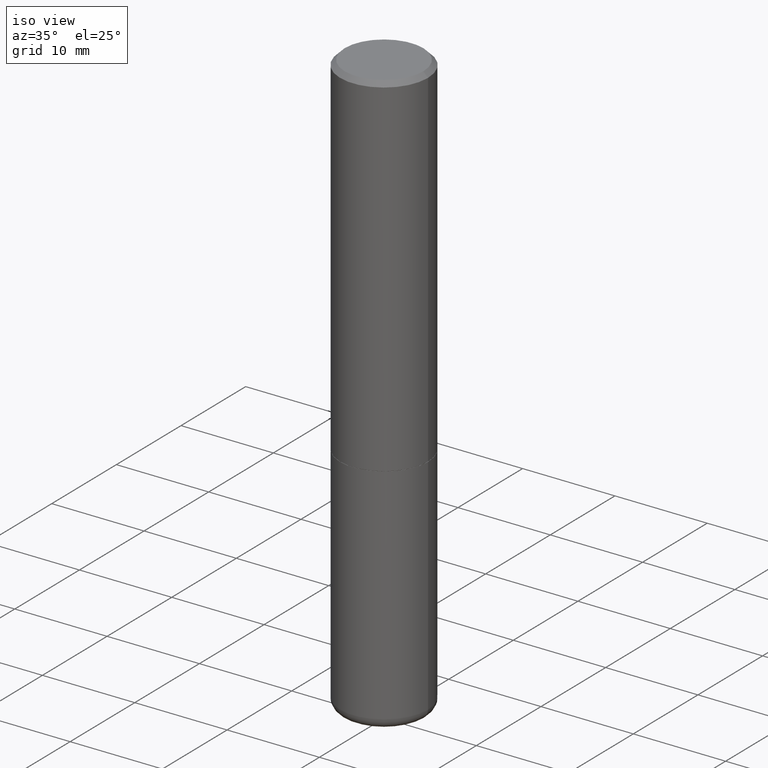
[diagram: clean part render]
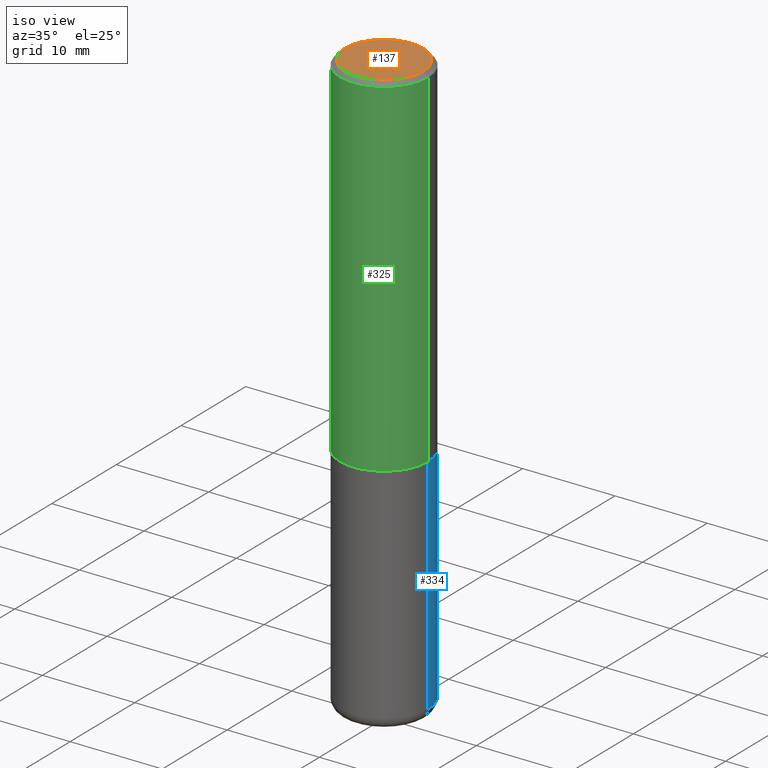
[diagram: same view with three faces highlighted in distinct colors, each labeled with its STEP entity id]
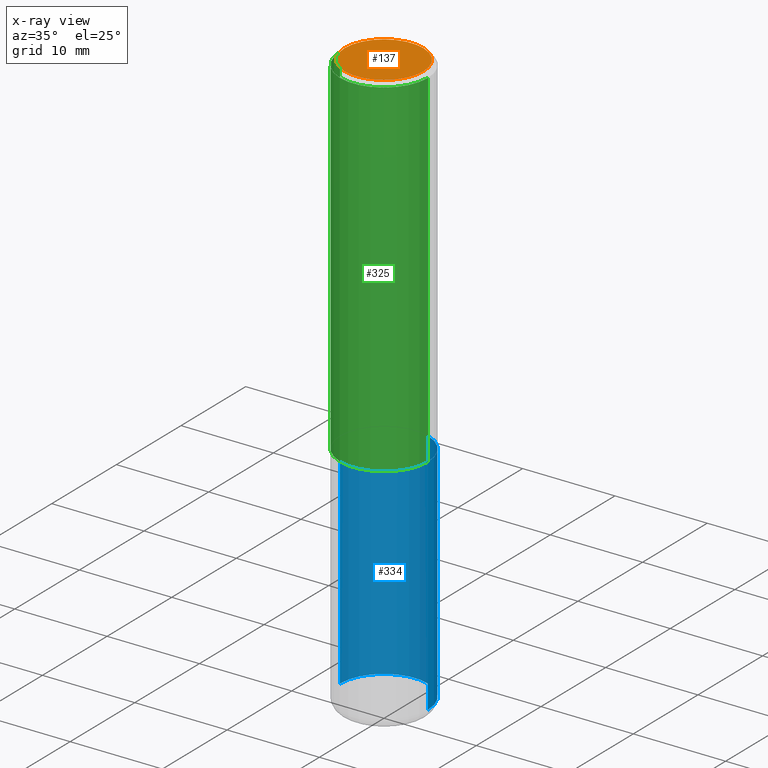
[diagram: x-ray of the same camera — body ghosted, the three highlighted faces saturated]
A machine part, iso view with three faces highlighted in distinct colors.
The next image is the same camera in x-ray (body ghosted, the three faces saturated) — at least one of them is partly hidden behind the body in this view.
Their STEP definitions:

[orange] entity #137 — the highlighted planar face has unit normal (0, -0, -1).
#8 = EDGE_CURVE ( 'NONE', #34, #312, #78, .T. ) ;
#34 = VERTEX_POINT ( 'NONE', #149 ) ;
#40 = EDGE_LOOP ( 'NONE', ( #301, #304 ) ) ;
#78 = CIRCLE ( 'NONE', #324, 0.1674999999999998157 ) ;
#80 = AXIS2_PLACEMENT_3D ( 'NONE', #316, #352, #281 ) ;
#110 = AXIS2_PLACEMENT_3D ( 'NONE', #442, #409, #201 ) ;
#137 = ADVANCED_FACE ( 'NONE', ( #354 ), #416, .F. ) ;
#149 = CARTESIAN_POINT ( 'NONE',  ( -0.1674999999999998157, 1.204561061900879272E-15, -8.301862719484101980E-30 ) ) ;
#201 = DIRECTION ( 'NONE',  ( 1.000000000000000000, -6.982962677686266711E-15, 4.876176775795936914E-29 ) ) ;
#233 = EDGE_CURVE ( 'NONE', #312, #34, #400, .T. ) ;
#255 = CARTESIAN_POINT ( 'NONE',  ( 0.1674999999999998157, -1.252653207992877105E-15, 8.469775550109232378E-30 ) ) ;
#268 = DIRECTION ( 'NONE',  ( -2.445468806185136597E-29, 3.491481338843145583E-15, 1.000000000000000000 ) ) ;
#281 = DIRECTION ( 'NONE',  ( -1.000000000000000000, 6.982962677686265922E-15, -4.876176775795935793E-29 ) ) ;
#301 = ORIENTED_EDGE ( 'NONE', *, *, #8, .T. ) ;
#304 = ORIENTED_EDGE ( 'NONE', *, *, #233, .T. ) ;
#312 = VERTEX_POINT ( 'NONE', #255 ) ;
#316 = CARTESIAN_POINT ( 'NONE',  ( 1.169646248512448412E-15, 0.1674999999999998157, -5.848231242562262767E-16 ) ) ;
#324 = AXIS2_PLACEMENT_3D ( 'NONE', #439, #268, #341 ) ;
#341 = DIRECTION ( 'NONE',  ( 1.000000000000000000, -6.982962677686266711E-15, 4.876176775795936914E-29 ) ) ;
#352 = DIRECTION ( 'NONE',  ( 2.438088387897960049E-29, -3.491481338843145188E-15, -1.000000000000000000 ) ) ;
#354 = FACE_OUTER_BOUND ( 'NONE', #40, .T. ) ;
#400 = CIRCLE ( 'NONE', #110, 0.1674999999999998157 ) ;
#409 = DIRECTION ( 'NONE',  ( -2.445468806185136597E-29, 3.491481338843145583E-15, 1.000000000000000000 ) ) ;
#416 = PLANE ( 'NONE',  #80 ) ;
#439 = CARTESIAN_POINT ( 'NONE',  ( 0.000000000000000000, 0.000000000000000000, 0.000000000000000000 ) ) ;
#442 = CARTESIAN_POINT ( 'NONE',  ( 0.000000000000000000, 0.000000000000000000, 0.000000000000000000 ) ) ;

[blue] entity #334 — the highlighted cylindrical surface (partial cylindrical patch) has radius 4.7625 mm, axis along (-0, 0, 1).
#5 = CARTESIAN_POINT ( 'NONE',  ( -0.1875000000000000278, -5.572244379473308339E-15, -1.500000000000000222 ) ) ;
#12 = CARTESIAN_POINT ( 'NONE',  ( -0.1874999999999998890, 1.332267629550187060E-15, -9.223003294227942385E-30 ) ) ;
#22 = CARTESIAN_POINT ( 'NONE',  ( -0.1874999999999997502, -5.572244379473309128E-15, -2.455061670936044660 ) ) ;
#23 = LINE ( 'NONE', #12, #230 ) ;
#43 = VERTEX_POINT ( 'NONE', #5 ) ;
#56 = AXIS2_PLACEMENT_3D ( 'NONE', #267, #83, #408 ) ;
#63 = DIRECTION ( 'NONE',  ( 1.000000000000000000, -6.982962677686266711E-15, 0.000000000000000000 ) ) ;
#71 = FACE_OUTER_BOUND ( 'NONE', #210, .T. ) ;
#72 = VERTEX_POINT ( 'NONE', #328 ) ;
#83 = DIRECTION ( 'NONE',  ( -2.445468806185136597E-29, 3.491481338843145583E-15, 1.000000000000000000 ) ) ;
#97 = DIRECTION ( 'NONE',  ( -2.445468806185136597E-29, 3.491481338843145583E-15, 1.000000000000000000 ) ) ;
#100 = EDGE_CURVE ( 'NONE', #243, #43, #23, .T. ) ;
#131 = CARTESIAN_POINT ( 'NONE',  ( 3.668203209277704895E-29, -5.237222008264718177E-15, -1.500000000000000222 ) ) ;
#150 = ORIENTED_EDGE ( 'NONE', *, *, #272, .T. ) ;
#153 = ORIENTED_EDGE ( 'NONE', *, *, #100, .T. ) ;
#179 = ORIENTED_EDGE ( 'NONE', *, *, #256, .F. ) ;
#180 = VERTEX_POINT ( 'NONE', #361 ) ;
#196 = CARTESIAN_POINT ( 'NONE',  ( 6.003776733534855624E-29, -8.571802009782271832E-15, -2.455061670936044660 ) ) ;
#203 = AXIS2_PLACEMENT_3D ( 'NONE', #196, #97, #430 ) ;
#210 = EDGE_LOOP ( 'NONE', ( #150, #153, #179, #310 ) ) ;
#230 = VECTOR ( 'NONE', #282, 39.37007874015748143 ) ;
#239 = EDGE_CURVE ( 'NONE', #72, #180, #297, .T. ) ;
#243 = VERTEX_POINT ( 'NONE', #22 ) ;
#256 = EDGE_CURVE ( 'NONE', #180, #43, #379, .T. ) ;
#267 = CARTESIAN_POINT ( 'NONE',  ( 0.000000000000000000, 0.000000000000000000, 0.000000000000000000 ) ) ;
#272 = EDGE_CURVE ( 'NONE', #72, #243, #364, .T. ) ;
#282 = DIRECTION ( 'NONE',  ( -2.445468806185136877E-29, 3.491481338843145188E-15, 1.000000000000000000 ) ) ;
#297 = LINE ( 'NONE', #401, #395 ) ;
#310 = ORIENTED_EDGE ( 'NONE', *, *, #239, .F. ) ;
#328 = CARTESIAN_POINT ( 'NONE',  ( 0.1874999999999997502, -9.881107511848445263E-15, -2.455061670936044660 ) ) ;
#332 = DIRECTION ( 'NONE',  ( -2.445468806185136877E-29, 3.491481338843145188E-15, 1.000000000000000000 ) ) ;
#334 = ADVANCED_FACE ( 'NONE', ( #71 ), #438, .T. ) ;
#361 = CARTESIAN_POINT ( 'NONE',  ( 0.1875000000000000278, -6.546527510330893974E-15, -1.500000000000000222 ) ) ;
#364 = CIRCLE ( 'NONE', #203, 0.1874999999999997502 ) ;
#379 = CIRCLE ( 'NONE', #441, 0.1875000000000000278 ) ;
#393 = DIRECTION ( 'NONE',  ( -2.445468806185136597E-29, 3.491481338843145583E-15, 1.000000000000000000 ) ) ;
#395 = VECTOR ( 'NONE', #332, 39.37007874015748143 ) ;
#401 = CARTESIAN_POINT ( 'NONE',  ( 0.1874999999999998890, -1.309305502066174022E-15, 9.142831454617374006E-30 ) ) ;
#408 = DIRECTION ( 'NONE',  ( 1.000000000000000000, -6.982962677686265922E-15, 4.876176775795935793E-29 ) ) ;
#430 = DIRECTION ( 'NONE',  ( 1.000000000000000000, -6.982962677686266711E-15, 0.000000000000000000 ) ) ;
#438 = CYLINDRICAL_SURFACE ( 'NONE', #56, 0.1874999999999998890 ) ;
#441 = AXIS2_PLACEMENT_3D ( 'NONE', #131, #393, #63 ) ;

[green] entity #325 — the highlighted cylindrical surface (partial cylindrical patch) has radius 4.7625 mm, axis along (-0, 0, 1).
#25 = LINE ( 'NONE', #426, #254 ) ;
#29 = CARTESIAN_POINT ( 'NONE',  ( -0.1874999999999999722, -1.319512447301180399E-15, -1.499000000000000110 ) ) ;
#36 = VERTEX_POINT ( 'NONE', #344 ) ;
#41 = VERTEX_POINT ( 'NONE', #175 ) ;
#46 = DIRECTION ( 'NONE',  ( -2.445468806185136597E-29, 3.491481338843145583E-15, 1.000000000000000000 ) ) ;
#99 = DIRECTION ( 'NONE',  ( -2.445468806185136597E-29, 3.491481338843145583E-15, 1.000000000000000000 ) ) ;
#101 = CYLINDRICAL_SURFACE ( 'NONE', #220, 0.1874999999999999167 ) ;
#105 = CARTESIAN_POINT ( 'NONE',  ( -0.1874999999999999167, 1.332267629550187257E-15, -9.223003294227943787E-30 ) ) ;
#107 = AXIS2_PLACEMENT_3D ( 'NONE', #348, #46, #185 ) ;
#121 = ORIENTED_EDGE ( 'NONE', *, *, #169, .F. ) ;
#141 = DIRECTION ( 'NONE',  ( -2.445468806185136597E-29, 3.491481338843145583E-15, 1.000000000000000000 ) ) ;
#142 = EDGE_LOOP ( 'NONE', ( #121, #381, #278, #374 ) ) ;
#146 = VERTEX_POINT ( 'NONE', #245 ) ;
#169 = EDGE_CURVE ( 'NONE', #440, #41, #200, .T. ) ;
#172 = DIRECTION ( 'NONE',  ( 1.000000000000000000, -6.982962677686265922E-15, 4.876176775795935793E-29 ) ) ;
#173 = AXIS2_PLACEMENT_3D ( 'NONE', #228, #99, #290 ) ;
#175 = CARTESIAN_POINT ( 'NONE',  ( -0.1874999999999998057, 1.239475875289310527E-15, -0.02000000000000003164 ) ) ;
#185 = DIRECTION ( 'NONE',  ( 1.000000000000000000, -6.982962677686266711E-15, 0.000000000000000000 ) ) ;
#200 = LINE ( 'NONE', #105, #298 ) ;
#220 = AXIS2_PLACEMENT_3D ( 'NONE', #363, #141, #172 ) ;
#228 = CARTESIAN_POINT ( 'NONE',  ( 3.665757740471519853E-29, -5.233730526925875958E-15, -1.499000000000000110 ) ) ;
#231 = DIRECTION ( 'NONE',  ( -2.445468806185136877E-29, 3.491481338843145188E-15, 1.000000000000000000 ) ) ;
#245 = CARTESIAN_POINT ( 'NONE',  ( 0.1875000000000000278, -6.543036028992050967E-15, -1.499000000000000110 ) ) ;
#249 = CIRCLE ( 'NONE', #173, 0.1875000000000000278 ) ;
#254 = VECTOR ( 'NONE', #360, 39.37007874015748143 ) ;
#278 = ORIENTED_EDGE ( 'NONE', *, *, #296, .T. ) ;
#280 = EDGE_CURVE ( 'NONE', #440, #146, #249, .T. ) ;
#286 = CIRCLE ( 'NONE', #107, 0.1874999999999998057 ) ;
#290 = DIRECTION ( 'NONE',  ( 1.000000000000000000, -6.982962677686266711E-15, 0.000000000000000000 ) ) ;
#296 = EDGE_CURVE ( 'NONE', #146, #36, #25, .T. ) ;
#298 = VECTOR ( 'NONE', #231, 39.37007874015748143 ) ;
#325 = ADVANCED_FACE ( 'NONE', ( #398 ), #101, .T. ) ;
#344 = CARTESIAN_POINT ( 'NONE',  ( 0.1874999999999998057, -1.356173001359023888E-15, -0.02000000000000003164 ) ) ;
#348 = CARTESIAN_POINT ( 'NONE',  ( 4.890937612370280165E-31, -6.982962677686301470E-17, -0.02000000000000003164 ) ) ;
#360 = DIRECTION ( 'NONE',  ( -2.445468806185136877E-29, 3.491481338843145188E-15, 1.000000000000000000 ) ) ;
#363 = CARTESIAN_POINT ( 'NONE',  ( 0.000000000000000000, 0.000000000000000000, 0.000000000000000000 ) ) ;
#374 = ORIENTED_EDGE ( 'NONE', *, *, #413, .F. ) ;
#381 = ORIENTED_EDGE ( 'NONE', *, *, #280, .T. ) ;
#398 = FACE_OUTER_BOUND ( 'NONE', #142, .T. ) ;
#413 = EDGE_CURVE ( 'NONE', #41, #36, #286, .T. ) ;
#426 = CARTESIAN_POINT ( 'NONE',  ( 0.1874999999999999167, -1.309305502066174219E-15, 9.142831454617375408E-30 ) ) ;
#440 = VERTEX_POINT ( 'NONE', #29 ) ;